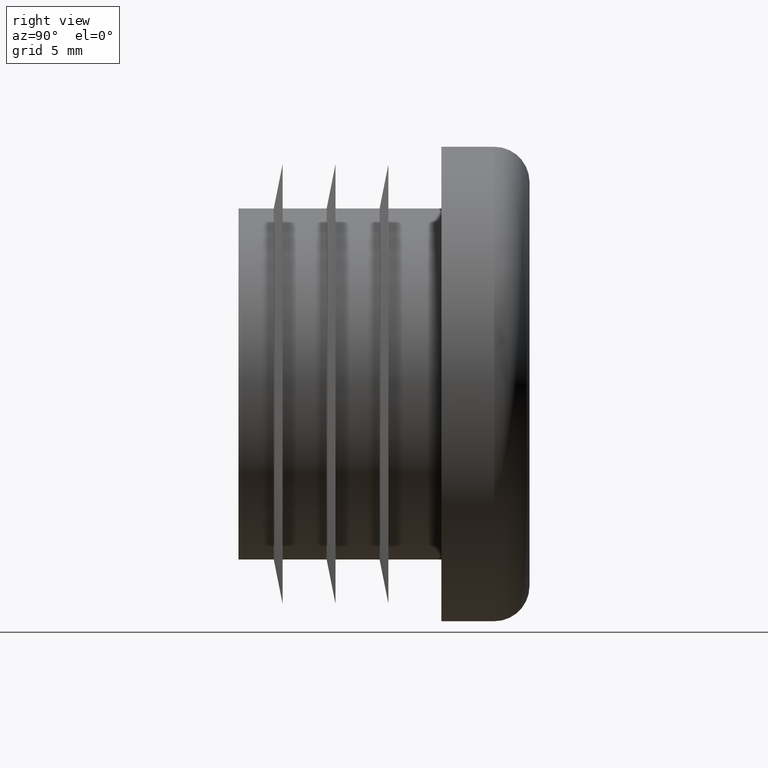
[diagram: clean part render]
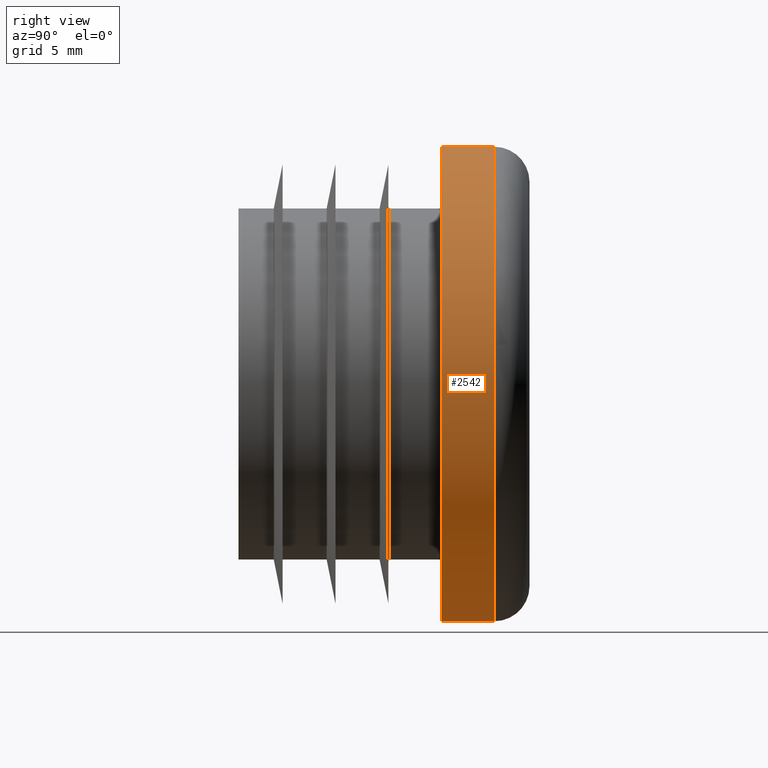
[diagram: same view with one face highlighted and labeled with its STEP entity id]
A machine part, right view. The second image highlights one B-rep face of the part: STEP entity #2542.
In plain terms, the highlighted cylindrical surface (partial cylindrical patch) has radius 13.45 mm, axis along (-0, -1, -0).
Its self-contained STEP definition (entity closure, byte-faithful):
#138 = EDGE_CURVE ( 'NONE', #2421, #6134, #5174, .T. ) ;
#712 = ORIENTED_EDGE ( 'NONE', *, *, #5310, .T. ) ;
#782 = DIRECTION ( 'NONE',  ( 0.0000000000000000000, 1.000000000000000000, 0.0000000000000000000 ) ) ;
#1158 = FACE_OUTER_BOUND ( 'NONE', #7696, .T. ) ;
#1673 = AXIS2_PLACEMENT_3D ( 'NONE', #4803, #3463, #5483 ) ;
#1962 = CARTESIAN_POINT ( 'NONE',  ( 0.0000000000000000000, 0.0000000000000000000, -13.44999999999999900 ) ) ;
#2206 = ORIENTED_EDGE ( 'NONE', *, *, #8237, .T. ) ;
#2421 = VERTEX_POINT ( 'NONE', #8231 ) ;
#2489 = ORIENTED_EDGE ( 'NONE', *, *, #138, .F. ) ;
#2542 = ADVANCED_FACE ( 'NONE', ( #1158 ), #3895, .T. ) ;
#2640 = ORIENTED_EDGE ( 'NONE', *, *, #3978, .T. ) ;
#2834 = CIRCLE ( 'NONE', #6350, 13.44999999999999900 ) ;
#2939 = CARTESIAN_POINT ( 'NONE',  ( 1.647149944853190000E-015, 3.000000000000000000, 13.44999999999999900 ) ) ;
#2971 = CARTESIAN_POINT ( 'NONE',  ( 0.0000000000000000000, 3.000000000000000000, 0.0000000000000000000 ) ) ;
#3269 = VERTEX_POINT ( 'NONE', #6967 ) ;
#3463 = DIRECTION ( 'NONE',  ( -0.0000000000000000000, -1.000000000000000000, -0.0000000000000000000 ) ) ;
#3651 = DIRECTION ( 'NONE',  ( 0.0000000000000000000, 0.0000000000000000000, 1.000000000000000000 ) ) ;
#3895 = CYLINDRICAL_SURFACE ( 'NONE', #1673, 13.44999999999999900 ) ;
#3951 = VECTOR ( 'NONE', #6256, 1000.000000000000000 ) ;
#3978 = EDGE_CURVE ( 'NONE', #2421, #5822, #2834, .T. ) ;
#4803 = CARTESIAN_POINT ( 'NONE',  ( 0.0000000000000000000, 5.000000000000000000, 0.0000000000000000000 ) ) ;
#4851 = CARTESIAN_POINT ( 'NONE',  ( 0.0000000000000000000, 0.0000000000000000000, 0.0000000000000000000 ) ) ;
#5012 = CARTESIAN_POINT ( 'NONE',  ( 1.647149944853190000E-015, 5.000000000000000000, 13.44999999999999900 ) ) ;
#5174 = LINE ( 'NONE', #5362, #8340 ) ;
#5300 = DIRECTION ( 'NONE',  ( -0.0000000000000000000, -1.000000000000000000, -0.0000000000000000000 ) ) ;
#5310 = EDGE_CURVE ( 'NONE', #5822, #3269, #7263, .T. ) ;
#5362 = CARTESIAN_POINT ( 'NONE',  ( 0.0000000000000000000, 5.000000000000000000, -13.44999999999999900 ) ) ;
#5483 = DIRECTION ( 'NONE',  ( 0.0000000000000000000, 0.0000000000000000000, -1.000000000000000000 ) ) ;
#5534 = DIRECTION ( 'NONE',  ( 0.0000000000000000000, 0.0000000000000000000, 1.000000000000000000 ) ) ;
#5682 = CIRCLE ( 'NONE', #6631, 13.44999999999999900 ) ;
#5822 = VERTEX_POINT ( 'NONE', #2939 ) ;
#6134 = VERTEX_POINT ( 'NONE', #1962 ) ;
#6256 = DIRECTION ( 'NONE',  ( -0.0000000000000000000, -1.000000000000000000, -0.0000000000000000000 ) ) ;
#6350 = AXIS2_PLACEMENT_3D ( 'NONE', #2971, #7392, #3651 ) ;
#6631 = AXIS2_PLACEMENT_3D ( 'NONE', #4851, #782, #5534 ) ;
#6967 = CARTESIAN_POINT ( 'NONE',  ( 1.647149944853190000E-015, 0.0000000000000000000, 13.44999999999999900 ) ) ;
#7263 = LINE ( 'NONE', #5012, #3951 ) ;
#7392 = DIRECTION ( 'NONE',  ( -0.0000000000000000000, -1.000000000000000000, -0.0000000000000000000 ) ) ;
#7696 = EDGE_LOOP ( 'NONE', ( #2640, #712, #2206, #2489 ) ) ;
#8231 = CARTESIAN_POINT ( 'NONE',  ( 0.0000000000000000000, 3.000000000000000000, -13.44999999999999900 ) ) ;
#8237 = EDGE_CURVE ( 'NONE', #3269, #6134, #5682, .T. ) ;
#8340 = VECTOR ( 'NONE', #5300, 1000.000000000000000 ) ;